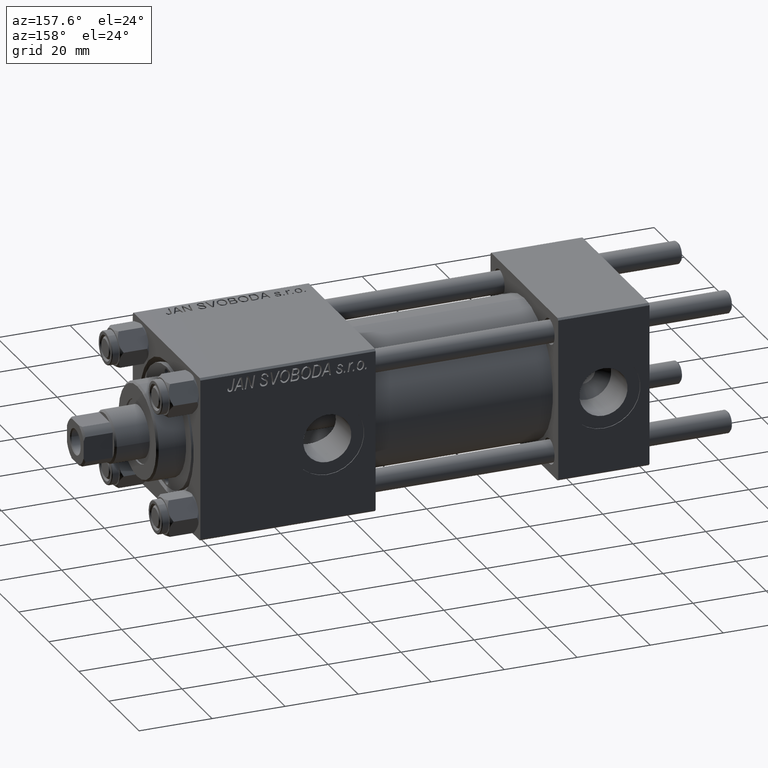
[diagram: clean part render]
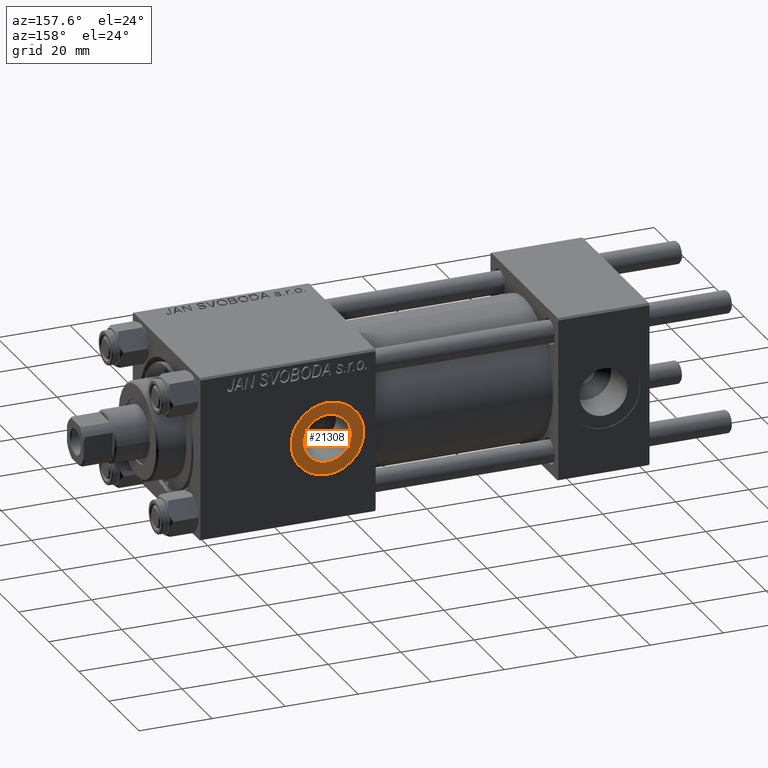
[diagram: same view with one face highlighted and labeled with its STEP entity id]
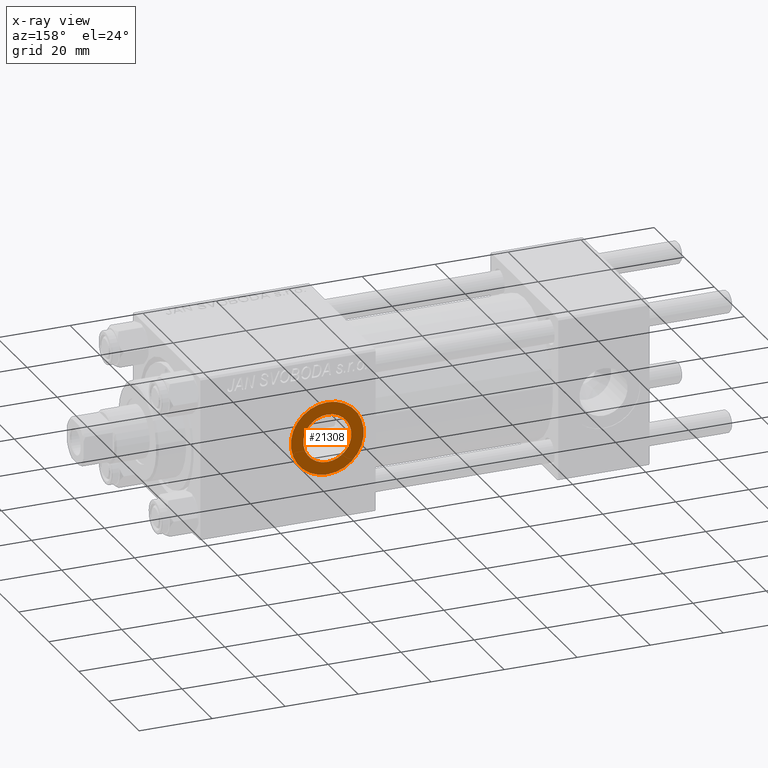
[diagram: x-ray of the same camera — body ghosted, the highlighted face saturated]
A machine part, auxiliary view. The second image highlights one B-rep face of the part: STEP entity #21308.
The next image is the same camera in x-ray: the body ghosted, the highlighted face saturated — about 0% of this face is hidden behind the body in this view.
In plain terms, the highlighted planar face has unit normal (0, 1, 0).
Its self-contained STEP definition (entity closure, byte-faithful):
#654 = CIRCLE ( 'NONE', #45976, 6.580000000000002736 ) ;
#1948 = AXIS2_PLACEMENT_3D ( 'NONE', #27385, #43153, #14536 ) ;
#3732 = CARTESIAN_POINT ( 'NONE',  ( 88.16000000000001080, 22.30000000000000426, -6.580000000000002736 ) ) ;
#5121 = EDGE_CURVE ( 'NONE', #31765, #50339, #654, .T. ) ;
#8196 = DIRECTION ( 'NONE',  ( 0.000000000000000000, 0.000000000000000000, 1.000000000000000000 ) ) ;
#8691 = CIRCLE ( 'NONE', #22153, 9.999999999999994671 ) ;
#12269 = DIRECTION ( 'NONE',  ( 0.000000000000000000, 1.000000000000000000, 0.000000000000000000 ) ) ;
#12430 = AXIS2_PLACEMENT_3D ( 'NONE', #45370, #29347, #25400 ) ;
#14536 = DIRECTION ( 'NONE',  ( 0.000000000000000000, 0.000000000000000000, 1.000000000000000000 ) ) ;
#15430 = PLANE ( 'NONE',  #32175 ) ;
#16224 = CARTESIAN_POINT ( 'NONE',  ( 88.16000000000001080, 22.30000000000000426, 0.000000000000000000 ) ) ;
#17097 = CIRCLE ( 'NONE', #1948, 6.580000000000002736 ) ;
#18586 = DIRECTION ( 'NONE',  ( 0.000000000000000000, -0.000000000000000000, 1.000000000000000000 ) ) ;
#19345 = CARTESIAN_POINT ( 'NONE',  ( 88.16000000000001080, 22.30000000000000426, 9.999999999999994671 ) ) ;
#19973 = CIRCLE ( 'NONE', #12430, 9.999999999999994671 ) ;
#20764 = ORIENTED_EDGE ( 'NONE', *, *, #22854, .F. ) ;
#21308 = ADVANCED_FACE ( 'NONE', ( #42490, #30683 ), #15430, .T. ) ;
#22153 = AXIS2_PLACEMENT_3D ( 'NONE', #16224, #12269, #28308 ) ;
#22505 = EDGE_LOOP ( 'NONE', ( #37879, #45712 ) ) ;
#22557 = EDGE_LOOP ( 'NONE', ( #29360, #20764 ) ) ;
#22854 = EDGE_CURVE ( 'NONE', #50339, #31765, #17097, .T. ) ;
#23065 = DIRECTION ( 'NONE',  ( 0.000000000000000000, 1.000000000000000000, 0.000000000000000000 ) ) ;
#23487 = CARTESIAN_POINT ( 'NONE',  ( 88.16000000000001080, 22.30000000000000426, 0.000000000000000000 ) ) ;
#25400 = DIRECTION ( 'NONE',  ( 0.000000000000000000, 0.000000000000000000, 1.000000000000000000 ) ) ;
#26924 = EDGE_CURVE ( 'NONE', #45443, #39235, #8691, .T. ) ;
#27385 = CARTESIAN_POINT ( 'NONE',  ( 88.16000000000001080, 22.30000000000000426, 0.000000000000000000 ) ) ;
#28308 = DIRECTION ( 'NONE',  ( 0.000000000000000000, 0.000000000000000000, 1.000000000000000000 ) ) ;
#29347 = DIRECTION ( 'NONE',  ( 0.000000000000000000, 1.000000000000000000, 0.000000000000000000 ) ) ;
#29360 = ORIENTED_EDGE ( 'NONE', *, *, #5121, .F. ) ;
#30683 = FACE_OUTER_BOUND ( 'NONE', #22505, .T. ) ;
#31765 = VERTEX_POINT ( 'NONE', #42820 ) ;
#31777 = CARTESIAN_POINT ( 'NONE',  ( 88.16000000000001080, 22.30000000000000426, -9.999999999999994671 ) ) ;
#32175 = AXIS2_PLACEMENT_3D ( 'NONE', #43017, #23065, #18586 ) ;
#35826 = DIRECTION ( 'NONE',  ( 0.000000000000000000, 1.000000000000000000, 0.000000000000000000 ) ) ;
#37287 = EDGE_CURVE ( 'NONE', #39235, #45443, #19973, .T. ) ;
#37879 = ORIENTED_EDGE ( 'NONE', *, *, #26924, .T. ) ;
#39235 = VERTEX_POINT ( 'NONE', #31777 ) ;
#42490 = FACE_BOUND ( 'NONE', #22557, .T. ) ;
#42820 = CARTESIAN_POINT ( 'NONE',  ( 88.16000000000001080, 22.30000000000000426, 6.580000000000002736 ) ) ;
#43017 = CARTESIAN_POINT ( 'NONE',  ( 88.16000000000001080, 22.30000000000000426, 0.000000000000000000 ) ) ;
#43153 = DIRECTION ( 'NONE',  ( 0.000000000000000000, 1.000000000000000000, 0.000000000000000000 ) ) ;
#45370 = CARTESIAN_POINT ( 'NONE',  ( 88.16000000000001080, 22.30000000000000426, 0.000000000000000000 ) ) ;
#45443 = VERTEX_POINT ( 'NONE', #19345 ) ;
#45712 = ORIENTED_EDGE ( 'NONE', *, *, #37287, .T. ) ;
#45976 = AXIS2_PLACEMENT_3D ( 'NONE', #23487, #35826, #8196 ) ;
#50339 = VERTEX_POINT ( 'NONE', #3732 ) ;